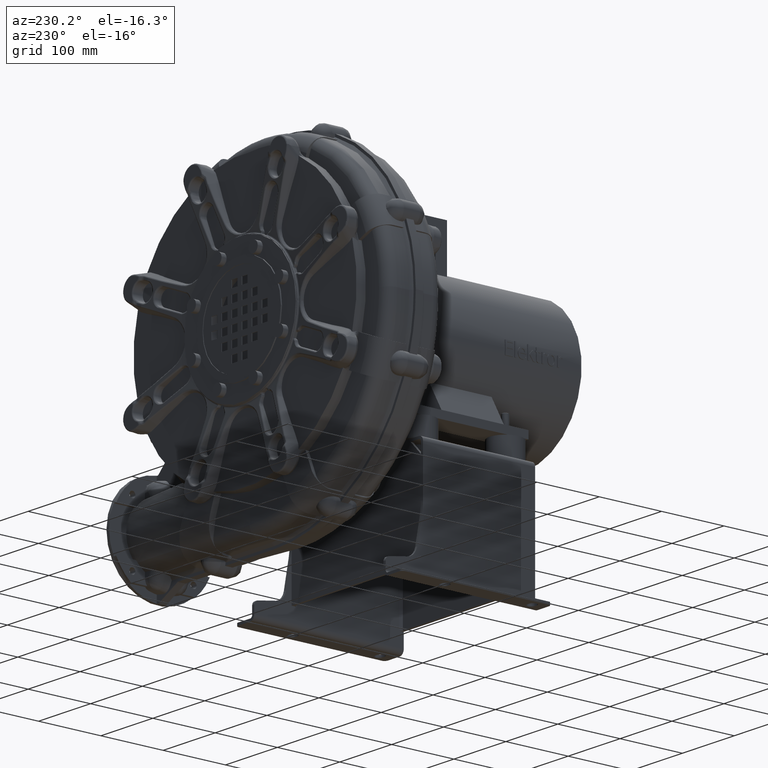
[diagram: clean part render]
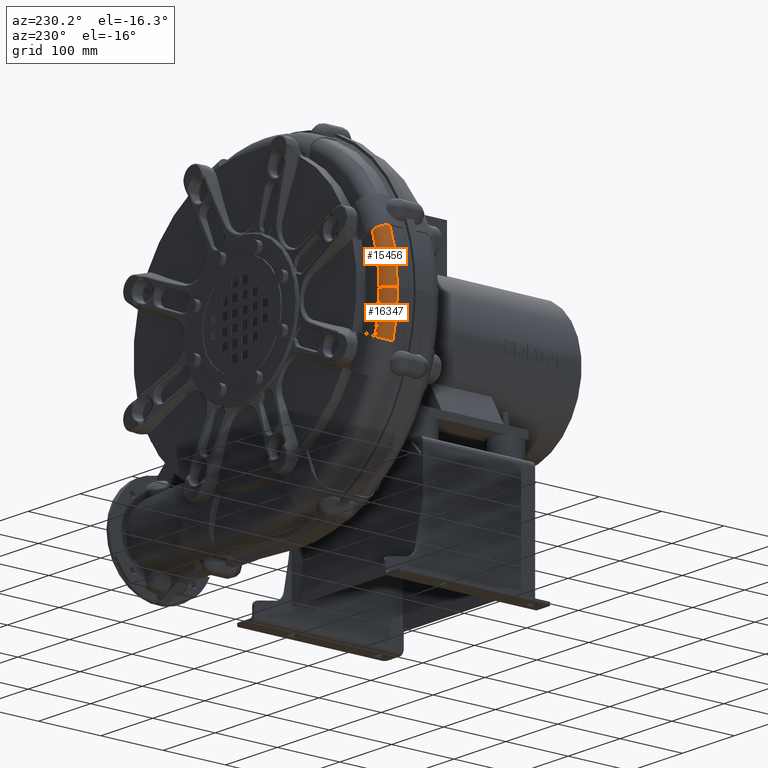
[diagram: same view with one multi-face feature highlighted, each face labeled with its STEP entity id]
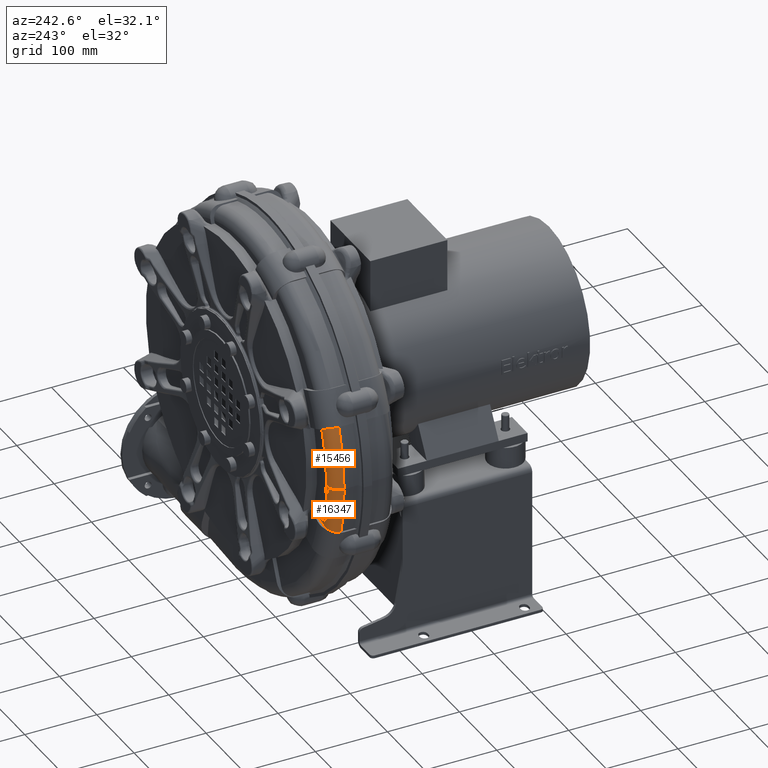
[diagram: same view with one multi-face feature highlighted, each face labeled with its STEP entity id]
A machine part, auxiliary view. The highlighted faces form ONE feature: a constant-radius fillet chain: 2 tangent blend faces with common blend radius 16 mm. The faces share edges in the B-rep.
A second angle (auxiliary view) of the same feature is appended — it is thin or edge-on in the first view.
Their STEP definitions:
[1] entity #16347 (Torus):
#15340=CARTESIAN_POINT('',(-255.99999999999969,237.49999999999957,136.99999999999989));
#15341=VERTEX_POINT('',#15340);
#15437=CARTESIAN_POINT('',(-240.00000000000006,253.49999999999955,136.99999999999989));
#15438=VERTEX_POINT('',#15437);
#15446=CARTESIAN_POINT('',(-240.00000000000006,237.49999999999957,136.99999999999989));
#15447=DIRECTION('',(0.0,0.0,1.0));
#15448=DIRECTION('',(0.0,1.0,0.0));
#15449=AXIS2_PLACEMENT_3D('',#15446,#15447,#15448);
#15450=CIRCLE('',#15449,16.0);
#15451=EDGE_CURVE('',#15438,#15341,#15450,.T.);
#15644=CARTESIAN_POINT('',(-232.46963708552903,253.4999999999996,76.226532386386339));
#15645=VERTEX_POINT('',#15644);
#15652=CARTESIAN_POINT('',(8.999999999999915,253.49999999999963,136.99999999999986));
#15653=DIRECTION('',(1.173769E-016,-1.0,1.173769E-016));
#15654=DIRECTION('',(-0.707106781186548,-1.659960E-016,-0.707106781186547));
#15655=AXIS2_PLACEMENT_3D('',#15652,#15653,#15654);
#15656=CIRCLE('',#15655,248.99999999999997);
#15657=EDGE_CURVE('',#15438,#15645,#15656,.T.);
#16308=CARTESIAN_POINT('',(8.999999999999918,237.4999999999996,136.99999999999986));
#16309=DIRECTION('',(2.400880E-016,-1.0,-5.334183E-018));
#16310=DIRECTION('',(1.0,0.0,0.0));
#16311=AXIS2_PLACEMENT_3D('',#16308,#16309,#16310);
#16312=TOROIDAL_SURFACE('',#16311,249.0,16.0);
#16313=CARTESIAN_POINT('',(-247.40121329516896,237.49999999999957,70.041671012746036));
#16314=VERTEX_POINT('',#16313);
#16315=CARTESIAN_POINT('',(-232.46963708552903,253.49999999999955,76.226532386386339));
#16316=CARTESIAN_POINT('',(-233.39447340690748,253.49999999999955,75.843452639096157));
#16317=CARTESIAN_POINT('',(-234.40463206159049,253.40200476329332,75.4250312241779));
#16318=CARTESIAN_POINT('',(-236.38344791735994,252.97890505167527,74.605378859279256));
#16319=CARTESIAN_POINT('',(-237.35209924467966,252.65376839275913,74.204150342292706));
#16320=CARTESIAN_POINT('',(-239.0574288851513,251.89364860256313,73.497779676892577));
#16321=CARTESIAN_POINT('',(-239.95175423711157,251.38964663867884,73.12733798693651));
#16322=CARTESIAN_POINT('',(-241.62235055487272,250.18933412010355,72.435354334869288));
#16323=CARTESIAN_POINT('',(-242.39859135856034,249.49297438390346,72.113824866314516));
#16324=CARTESIAN_POINT('',(-243.6985939741927,248.09405913363693,71.575346151799081));
#16325=CARTESIAN_POINT('',(-244.34291823161635,247.26350433498908,71.30845830580823));
#16326=CARTESIAN_POINT('',(-245.45472794466809,245.47380443291857,70.847931643884053));
#16327=CARTESIAN_POINT('',(-245.92217287569116,244.51462983556897,70.654309613791753));
#16328=CARTESIAN_POINT('',(-246.62306075716776,242.69309729110438,70.363992347581188));
#16329=CARTESIAN_POINT('',(-246.92183206487391,241.66343440876614,70.240237219881351));
#16330=CARTESIAN_POINT('',(-247.31091775369231,239.55899342678535,70.079072650647504));
#16331=CARTESIAN_POINT('',(-247.40121329516896,238.48421124634723,70.04167101274605));
#16332=CARTESIAN_POINT('',(-247.40121329516896,237.49999999999957,70.04167101274605));
#16333=B_SPLINE_CURVE_WITH_KNOTS('',3,(#16315,#16316,#16317,#16318,#16319,#16320,#16321,#16322,#16323,#16324,#16325,#16326,#16327,#16328,#16329,#16330,#16331,#16332),.UNSPECIFIED.,.F.,.U.,(4,2,2,2,2,2,2,2,4),(-2.381650031867816,-2.081339345625679,-1.781028659383541,-1.482473608122636,-1.183918556861729,-0.887222652335167,-0.590526747808605,-0.295263373904302,0.0),.UNSPECIFIED.);
#16334=EDGE_CURVE('',#15645,#16314,#16333,.T.);
#16335=ORIENTED_EDGE('',*,*,#16334,.T.);
#16336=CARTESIAN_POINT('',(8.999999999999918,237.4999999999996,136.99999999999986));
#16337=DIRECTION('',(-1.173769E-016,1.0,-1.173769E-016));
#16338=DIRECTION('',(-0.707106781186548,-1.659960E-016,-0.707106781186547));
#16339=AXIS2_PLACEMENT_3D('',#16336,#16337,#16338);
#16340=CIRCLE('',#16339,265.0);
#16341=EDGE_CURVE('',#16314,#15341,#16340,.T.);
#16342=ORIENTED_EDGE('',*,*,#16341,.T.);
#16343=ORIENTED_EDGE('',*,*,#15451,.F.);
#16344=ORIENTED_EDGE('',*,*,#15657,.T.);
#16345=EDGE_LOOP('',(#16335,#16342,#16343,#16344));
#16346=FACE_OUTER_BOUND('',#16345,.T.);
#16347=ADVANCED_FACE('',(#16346),#16312,.T.);
[2] entity #15456 (Torus):
#15332=CARTESIAN_POINT('',(-241.77019401527008,237.49999999999957,219.62588443153601));
#15333=VERTEX_POINT('',#15332);
#15340=CARTESIAN_POINT('',(-255.99999999999969,237.49999999999957,136.99999999999989));
#15341=VERTEX_POINT('',#15340);
#15342=CARTESIAN_POINT('',(-9.000000000000082,237.4999999999996,136.99999999999986));
#15343=DIRECTION('',(-1.227111E-016,1.0,1.227111E-016));
#15344=DIRECTION('',(-0.707106781186547,-1.735397E-016,0.707106781186548));
#15345=AXIS2_PLACEMENT_3D('',#15342,#15343,#15344);
#15346=CIRCLE('',#15345,247.0);
#15347=EDGE_CURVE('',#15341,#15333,#15346,.T.);
#15409=CARTESIAN_POINT('',(-9.000000000000082,237.4999999999996,136.99999999999986));
#15410=DIRECTION('',(2.400880E-016,-1.0,-5.334183E-018));
#15411=DIRECTION('',(1.0,0.0,0.0));
#15412=AXIS2_PLACEMENT_3D('',#15409,#15410,#15411);
#15413=TOROIDAL_SURFACE('',#15412,230.99999999999997,16.0);
#15414=CARTESIAN_POINT('',(-226.96704840671043,253.4999999999996,213.49422075468681));
#15415=VERTEX_POINT('',#15414);
#15416=CARTESIAN_POINT('',(-241.77019401527008,237.49999999999957,219.62588443153601));
#15417=CARTESIAN_POINT('',(-241.77019401527008,238.4868705168588,219.62588443153601));
#15418=CARTESIAN_POINT('',(-241.68015651957808,239.56464633284426,219.58858967969829));
#15419=CARTESIAN_POINT('',(-241.29193865320792,241.67535165591747,219.42778457429222));
#15420=CARTESIAN_POINT('',(-240.99376090701662,242.70828172854203,219.30427530782191));
#15421=CARTESIAN_POINT('',(-240.2952412422741,244.5321965823253,219.01493898910127));
#15422=CARTESIAN_POINT('',(-239.83043883896619,245.49114604935394,218.82241152982749));
#15423=CARTESIAN_POINT('',(-238.72435490402626,247.28131210716458,218.36425656285243));
#15424=CARTESIAN_POINT('',(-238.08307904917791,248.11253280722548,218.09863140655179));
#15425=CARTESIAN_POINT('',(-236.79168811419274,249.50917186447029,217.56371976695527));
#15426=CARTESIAN_POINT('',(-236.02248566551799,250.20313776180404,217.24510568050357));
#15427=CARTESIAN_POINT('',(-234.36617471234086,251.39992112290929,216.5590392201905));
#15428=CARTESIAN_POINT('',(-233.47907048683732,251.90274552472243,216.19158861874843));
#15429=CARTESIAN_POINT('',(-231.79082533277634,252.65903120917156,215.49229457932572));
#15430=CARTESIAN_POINT('',(-230.83407106462988,252.98202516697432,215.09599398560113));
#15431=CARTESIAN_POINT('',(-228.87915413696948,253.40250725063976,214.28624088085144));
#15432=CARTESIAN_POINT('',(-227.88099232628747,253.4999999999996,213.87278872142406));
#15433=CARTESIAN_POINT('',(-226.96704840671046,253.4999999999996,213.49422075468684));
#15434=B_SPLINE_CURVE_WITH_KNOTS('',3,(#15416,#15417,#15418,#15419,#15420,#15421,#15422,#15423,#15424,#15425,#15426,#15427,#15428,#15429,#15430,#15431,#15432,#15433),.UNSPECIFIED.,.F.,.U.,(4,2,2,2,2,2,2,2,4),(0.0,0.296061155057772,0.592122310115544,0.888385353372573,1.184648396629601,1.481173637570522,1.777698878511442,2.07447260952789,2.371246340544337),.UNSPECIFIED.);
#15435=EDGE_CURVE('',#15333,#15415,#15434,.T.);
#15436=ORIENTED_EDGE('',*,*,#15435,.T.);
#15437=CARTESIAN_POINT('',(-240.00000000000006,253.49999999999955,136.99999999999989));
#15438=VERTEX_POINT('',#15437);
#15439=CARTESIAN_POINT('',(-9.000000000000085,253.49999999999963,136.99999999999986));
#15440=DIRECTION('',(1.227111E-016,-1.0,-1.227111E-016));
#15441=DIRECTION('',(-0.707106781186547,-1.735397E-016,0.707106781186548));
#15442=AXIS2_PLACEMENT_3D('',#15439,#15440,#15441);
#15443=CIRCLE('',#15442,230.99999999999997);
#15444=EDGE_CURVE('',#15415,#15438,#15443,.T.);
#15445=ORIENTED_EDGE('',*,*,#15444,.T.);
#15446=CARTESIAN_POINT('',(-240.00000000000006,237.49999999999957,136.99999999999989));
#15447=DIRECTION('',(0.0,0.0,1.0));
#15448=DIRECTION('',(0.0,1.0,0.0));
#15449=AXIS2_PLACEMENT_3D('',#15446,#15447,#15448);
#15450=CIRCLE('',#15449,16.0);
#15451=EDGE_CURVE('',#15438,#15341,#15450,.T.);
#15452=ORIENTED_EDGE('',*,*,#15451,.T.);
#15453=ORIENTED_EDGE('',*,*,#15347,.T.);
#15454=EDGE_LOOP('',(#15436,#15445,#15452,#15453));
#15455=FACE_OUTER_BOUND('',#15454,.T.);
#15456=ADVANCED_FACE('',(#15455),#15413,.T.);